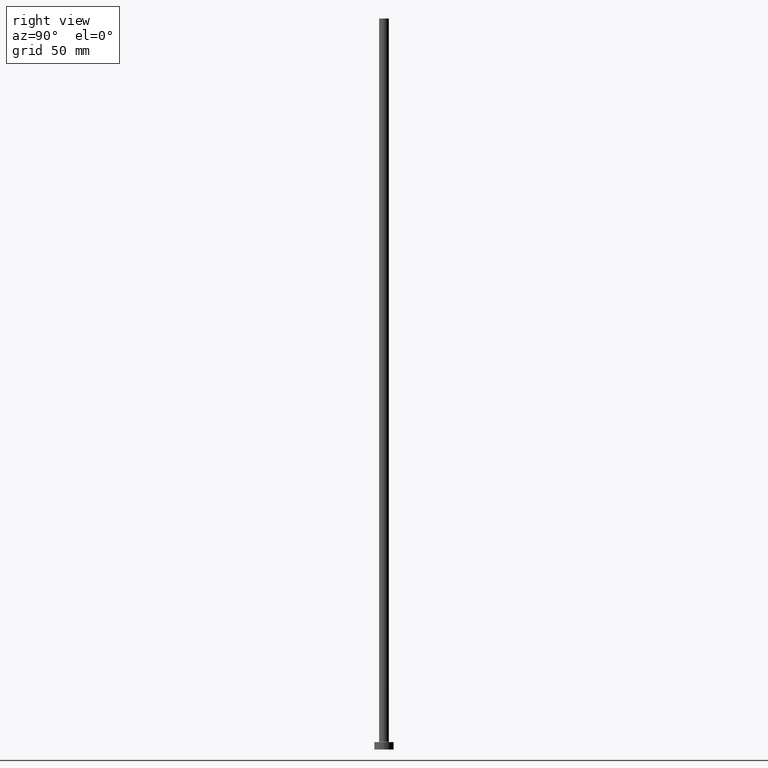
[diagram: clean part render]
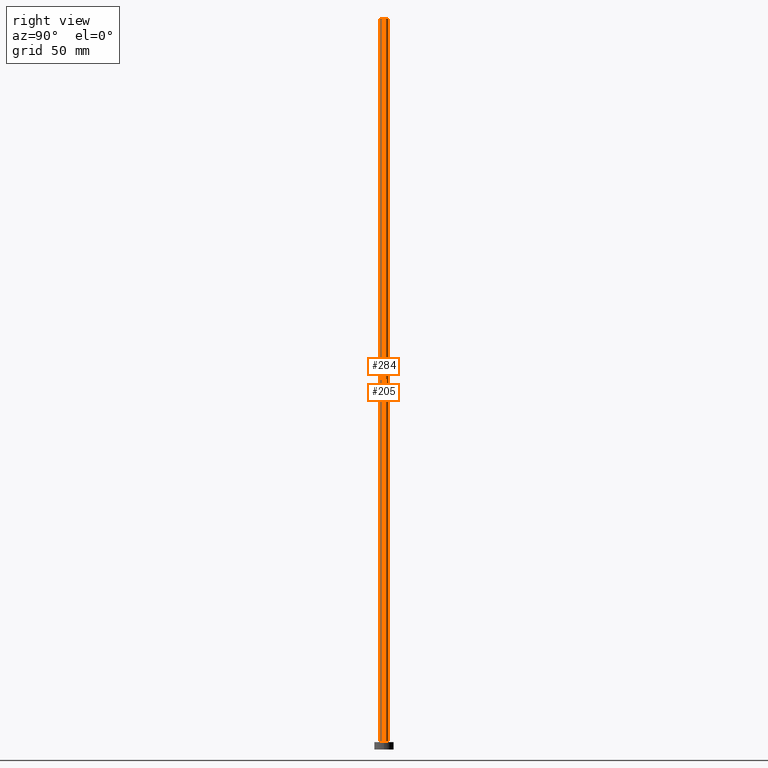
[diagram: same view with one multi-face feature highlighted, each face labeled with its STEP entity id]
A machine part, right view. The highlighted faces form ONE feature: a constant-radius fillet chain: 2 tangent blend faces with common blend radius 2 mm. The faces share edges in the B-rep.
Their STEP definitions:
[1] entity #284 (Cylinder):
#8 = CYLINDRICAL_SURFACE ( 'NONE', #114, 2.000000000000000000 ) ;
#11 = VERTEX_POINT ( 'NONE', #401 ) ;
#29 = EDGE_CURVE ( 'NONE', #83, #434, #172, .T. ) ;
#32 = CIRCLE ( 'NONE', #86, 2.000000000000000000 ) ;
#43 = CARTESIAN_POINT ( 'NONE',  ( -2.000000000000000000, 0.000000000000000000, 3.300000000000025135 ) ) ;
#56 = ORIENTED_EDGE ( 'NONE', *, *, #420, .T. ) ;
#83 = VERTEX_POINT ( 'NONE', #43 ) ;
#86 = AXIS2_PLACEMENT_3D ( 'NONE', #266, #224, #220 ) ;
#92 = DIRECTION ( 'NONE',  ( -0.000000000000000000, -0.000000000000000000, -1.000000000000000000 ) ) ;
#94 = ORIENTED_EDGE ( 'NONE', *, *, #29, .T. ) ;
#110 = FACE_OUTER_BOUND ( 'NONE', #375, .T. ) ;
#114 = AXIS2_PLACEMENT_3D ( 'NONE', #233, #383, #196 ) ;
#121 = EDGE_CURVE ( 'NONE', #11, #434, #314, .T. ) ;
#139 = CARTESIAN_POINT ( 'NONE',  ( -2.000000000000000000, 0.000000000000000000, 300.0000000000000000 ) ) ;
#143 = DIRECTION ( 'NONE',  ( 0.000000000000000000, 0.000000000000000000, 1.000000000000000000 ) ) ;
#149 = ORIENTED_EDGE ( 'NONE', *, *, #121, .F. ) ;
#172 = CIRCLE ( 'NONE', #274, 2.000000000000000000 ) ;
#181 = CARTESIAN_POINT ( 'NONE',  ( 0.000000000000000000, 0.000000000000000000, 3.300000000000025135 ) ) ;
#189 = VERTEX_POINT ( 'NONE', #139 ) ;
#196 = DIRECTION ( 'NONE',  ( -1.000000000000000000, 0.000000000000000000, 0.000000000000000000 ) ) ;
#199 = DIRECTION ( 'NONE',  ( -0.000000000000000000, -0.000000000000000000, -1.000000000000000000 ) ) ;
#220 = DIRECTION ( 'NONE',  ( 1.000000000000000000, 0.000000000000000000, 0.000000000000000000 ) ) ;
#221 = DIRECTION ( 'NONE',  ( 1.000000000000000000, 0.000000000000000000, 0.000000000000000000 ) ) ;
#224 = DIRECTION ( 'NONE',  ( 0.000000000000000000, 0.000000000000000000, 1.000000000000000000 ) ) ;
#232 = EDGE_CURVE ( 'NONE', #189, #11, #32, .T. ) ;
#233 = CARTESIAN_POINT ( 'NONE',  ( 0.000000000000000000, 0.000000000000000000, 300.0000000000000000 ) ) ;
#240 = CARTESIAN_POINT ( 'NONE',  ( -2.000000000000000000, 0.000000000000000000, 300.0000000000000000 ) ) ;
#266 = CARTESIAN_POINT ( 'NONE',  ( 0.000000000000000000, 0.000000000000000000, 300.0000000000000000 ) ) ;
#269 = ORIENTED_EDGE ( 'NONE', *, *, #232, .F. ) ;
#274 = AXIS2_PLACEMENT_3D ( 'NONE', #181, #143, #221 ) ;
#284 = ADVANCED_FACE ( 'NONE', ( #110 ), #8, .T. ) ;
#306 = LINE ( 'NONE', #240, #417 ) ;
#314 = LINE ( 'NONE', #339, #406 ) ;
#316 = CARTESIAN_POINT ( 'NONE',  ( 2.000000000000000000, 2.449293598294706414E-16, 3.300000000000025135 ) ) ;
#339 = CARTESIAN_POINT ( 'NONE',  ( 2.000000000000000000, 2.449293598294706414E-16, 300.0000000000000000 ) ) ;
#375 = EDGE_LOOP ( 'NONE', ( #149, #269, #56, #94 ) ) ;
#383 = DIRECTION ( 'NONE',  ( -0.000000000000000000, -0.000000000000000000, -1.000000000000000000 ) ) ;
#401 = CARTESIAN_POINT ( 'NONE',  ( 2.000000000000000000, 2.449293598294706414E-16, 300.0000000000000000 ) ) ;
#406 = VECTOR ( 'NONE', #92, 1000.000000000000000 ) ;
#417 = VECTOR ( 'NONE', #199, 1000.000000000000000 ) ;
#420 = EDGE_CURVE ( 'NONE', #189, #83, #306, .T. ) ;
#434 = VERTEX_POINT ( 'NONE', #316 ) ;
[2] entity #205 (Cylinder):
#6 = ORIENTED_EDGE ( 'NONE', *, *, #243, .T. ) ;
#11 = VERTEX_POINT ( 'NONE', #401 ) ;
#13 = ORIENTED_EDGE ( 'NONE', *, *, #121, .T. ) ;
#43 = CARTESIAN_POINT ( 'NONE',  ( -2.000000000000000000, 0.000000000000000000, 3.300000000000025135 ) ) ;
#77 = CIRCLE ( 'NONE', #109, 2.000000000000000000 ) ;
#83 = VERTEX_POINT ( 'NONE', #43 ) ;
#92 = DIRECTION ( 'NONE',  ( -0.000000000000000000, -0.000000000000000000, -1.000000000000000000 ) ) ;
#93 = DIRECTION ( 'NONE',  ( 1.000000000000000000, 0.000000000000000000, 0.000000000000000000 ) ) ;
#101 = DIRECTION ( 'NONE',  ( 0.000000000000000000, 0.000000000000000000, 1.000000000000000000 ) ) ;
#109 = AXIS2_PLACEMENT_3D ( 'NONE', #382, #101, #93 ) ;
#111 = FACE_OUTER_BOUND ( 'NONE', #415, .T. ) ;
#113 = DIRECTION ( 'NONE',  ( 1.000000000000000000, 0.000000000000000000, 0.000000000000000000 ) ) ;
#116 = ORIENTED_EDGE ( 'NONE', *, *, #431, .F. ) ;
#121 = EDGE_CURVE ( 'NONE', #11, #434, #314, .T. ) ;
#139 = CARTESIAN_POINT ( 'NONE',  ( -2.000000000000000000, 0.000000000000000000, 300.0000000000000000 ) ) ;
#189 = VERTEX_POINT ( 'NONE', #139 ) ;
#199 = DIRECTION ( 'NONE',  ( -0.000000000000000000, -0.000000000000000000, -1.000000000000000000 ) ) ;
#205 = ADVANCED_FACE ( 'NONE', ( #111 ), #250, .T. ) ;
#240 = CARTESIAN_POINT ( 'NONE',  ( -2.000000000000000000, 0.000000000000000000, 300.0000000000000000 ) ) ;
#243 = EDGE_CURVE ( 'NONE', #434, #83, #389, .T. ) ;
#246 = DIRECTION ( 'NONE',  ( -0.000000000000000000, -0.000000000000000000, -1.000000000000000000 ) ) ;
#250 = CYLINDRICAL_SURFACE ( 'NONE', #317, 2.000000000000000000 ) ;
#255 = CARTESIAN_POINT ( 'NONE',  ( 0.000000000000000000, 0.000000000000000000, 300.0000000000000000 ) ) ;
#306 = LINE ( 'NONE', #240, #417 ) ;
#314 = LINE ( 'NONE', #339, #406 ) ;
#316 = CARTESIAN_POINT ( 'NONE',  ( 2.000000000000000000, 2.449293598294706414E-16, 3.300000000000025135 ) ) ;
#317 = AXIS2_PLACEMENT_3D ( 'NONE', #255, #246, #359 ) ;
#339 = CARTESIAN_POINT ( 'NONE',  ( 2.000000000000000000, 2.449293598294706414E-16, 300.0000000000000000 ) ) ;
#359 = DIRECTION ( 'NONE',  ( -1.000000000000000000, 0.000000000000000000, 0.000000000000000000 ) ) ;
#369 = CARTESIAN_POINT ( 'NONE',  ( 0.000000000000000000, 0.000000000000000000, 3.300000000000025135 ) ) ;
#379 = ORIENTED_EDGE ( 'NONE', *, *, #420, .F. ) ;
#382 = CARTESIAN_POINT ( 'NONE',  ( 0.000000000000000000, 0.000000000000000000, 300.0000000000000000 ) ) ;
#389 = CIRCLE ( 'NONE', #395, 2.000000000000000000 ) ;
#395 = AXIS2_PLACEMENT_3D ( 'NONE', #369, #430, #113 ) ;
#401 = CARTESIAN_POINT ( 'NONE',  ( 2.000000000000000000, 2.449293598294706414E-16, 300.0000000000000000 ) ) ;
#406 = VECTOR ( 'NONE', #92, 1000.000000000000000 ) ;
#415 = EDGE_LOOP ( 'NONE', ( #116, #13, #6, #379 ) ) ;
#417 = VECTOR ( 'NONE', #199, 1000.000000000000000 ) ;
#420 = EDGE_CURVE ( 'NONE', #189, #83, #306, .T. ) ;
#430 = DIRECTION ( 'NONE',  ( 0.000000000000000000, 0.000000000000000000, 1.000000000000000000 ) ) ;
#431 = EDGE_CURVE ( 'NONE', #11, #189, #77, .T. ) ;
#434 = VERTEX_POINT ( 'NONE', #316 ) ;